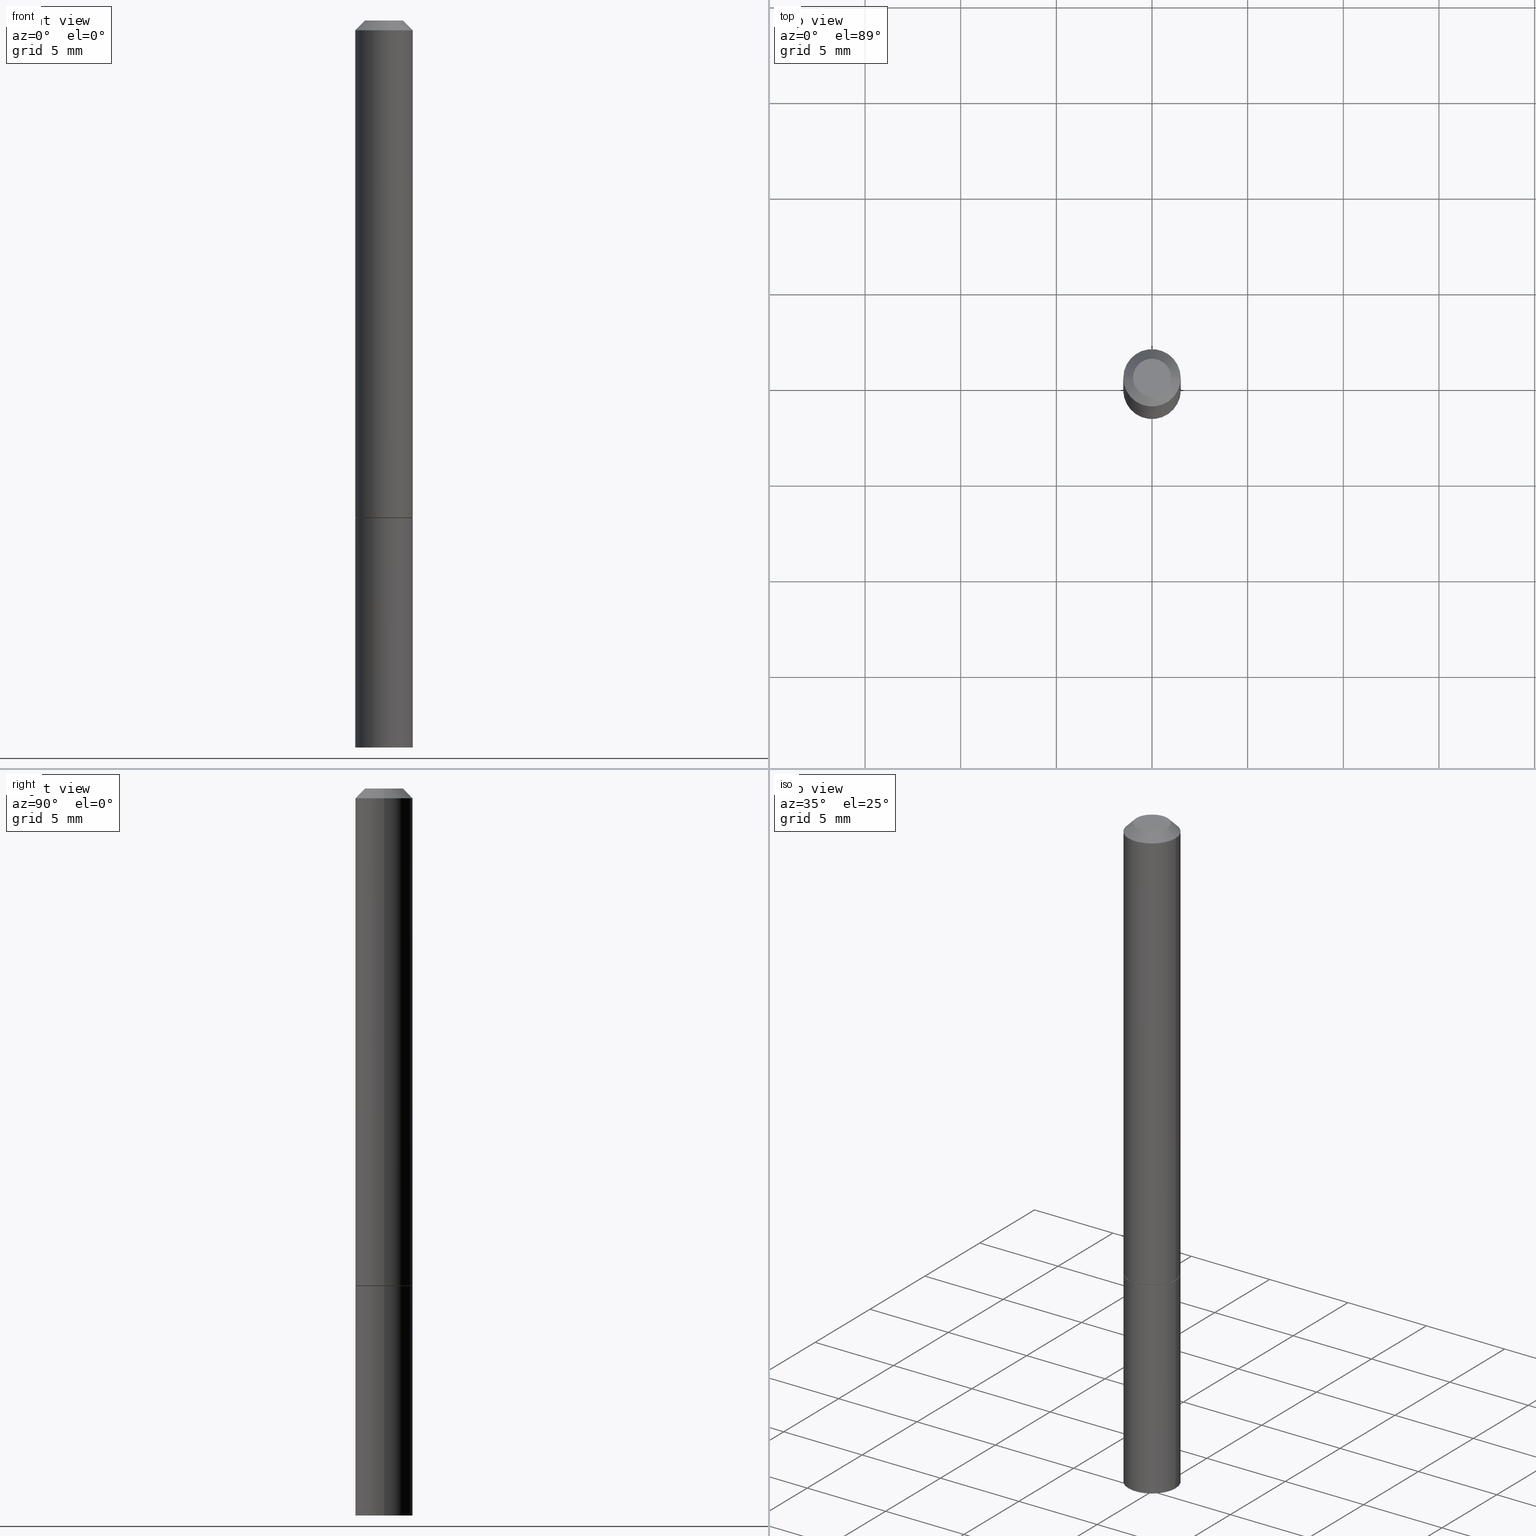
[diagram: canonical four-view strip — front | top / right | iso, engineering-drawing reading convention]
A machine part, canonical four-view strip (front | top / right | iso — engineering-drawing reading convention). The complete STEP part file that produces these views, byte-faithful:
ISO-10303-21;
HEADER;
FILE_DESCRIPTION (( 'STEP AP203' ),
    '1' );
FILE_NAME ('48547.STEP',
    '2024-02-28T12:10:07',
    ( '' ),
    ( '' ),
    'SwSTEP 2.0',
    'SolidWorks 2023',
    '' );
FILE_SCHEMA (( 'CONFIG_CONTROL_DESIGN' ));
ENDSEC;

DATA;
#1 = ORIENTED_EDGE ( 'NONE', *, *, #110, .T. ) ;
#2 = AXIS2_PLACEMENT_3D ( 'NONE', #223, #228, #162 ) ;
#3 = ORIENTED_EDGE ( 'NONE', *, *, #339, .F. ) ;
#4 = CIRCLE ( 'NONE', #213, 0.05805000000000001131 ) ;
#5 = CC_DESIGN_APPROVAL ( #293, ( #258 ) ) ;
#6 = ORIENTED_EDGE ( 'NONE', *, *, #261, .T. ) ;
#7 = EDGE_CURVE ( 'NONE', #59, #209, #348, .T. ) ;
#8 = PRODUCT_RELATED_PRODUCT_CATEGORY ( 'detail', '', ( #28 ) ) ;
#9 = ORIENTED_EDGE ( 'NONE', *, *, #236, .F. ) ;
#10 = ORGANIZATION ( 'UNSPECIFIED', 'UNSPECIFIED', '' ) ;
#11 = CARTESIAN_POINT ( 'NONE',  ( 2.500980948085538461E-29, -3.570737965234883817E-15, -1.022699999999999720 ) ) ;
#12 = AXIS2_PLACEMENT_3D ( 'NONE', #323, #349, #212 ) ;
#13 = CARTESIAN_POINT ( 'NONE',  ( 0.03904999999999982097, -3.714222401791240519E-16, -5.549066237130309406E-17 ) ) ;
#14 = DIRECTION ( 'NONE',  ( 1.000000000000000000, -6.982962677686270655E-15, 0.000000000000000000 ) ) ;
#15 = CARTESIAN_POINT ( 'NONE',  ( 1.357006838635785746E-45, -1.937446121494581442E-31, -5.549066237130534971E-17 ) ) ;
#16 = CARTESIAN_POINT ( 'NONE',  ( 2.503426416891723784E-29, -3.574229446573727613E-15, -1.023699999999999832 ) ) ;
#17 = CARTESIAN_POINT ( 'NONE',  ( 2.503426416891723784E-29, -3.574229446573727613E-15, -1.023699999999999832 ) ) ;
#18 = FACE_OUTER_BOUND ( 'NONE', #281, .T. ) ;
#19 = AXIS2_PLACEMENT_3D ( 'NONE', #214, #75, #101 ) ;
#20 = DIRECTION ( 'NONE',  ( -2.445468806185136597E-29, 3.491481338843145583E-15, 1.000000000000000000 ) ) ;
#21 = DIRECTION ( 'NONE',  ( -2.445468806185136597E-29, 3.491481338843145583E-15, 1.000000000000000000 ) ) ;
#22 = ORIENTED_EDGE ( 'NONE', *, *, #236, .T. ) ;
#23 = FACE_OUTER_BOUND ( 'NONE', #31, .T. ) ;
#24 = APPROVAL ( #365, 'UNSPECIFIED' ) ;
#25 = DIMENSIONAL_EXPONENTS ( 1.000000000000000000, 0.000000000000000000, 0.000000000000000000, 0.000000000000000000, 0.000000000000000000, 0.000000000000000000, 0.000000000000000000 ) ;
#26 = CONICAL_SURFACE ( 'NONE', #327, 0.05904999999999981097, 0.7853981633974476129 ) ;
#27 = CARTESIAN_POINT ( 'NONE',  ( 1.357006838635785746E-45, -1.937446121494581442E-31, -5.549066237130534971E-17 ) ) ;
#28 = PRODUCT ( '48547', '48547', '', ( #168 ) ) ;
#29 = CC_DESIGN_PERSON_AND_ORGANIZATION_ASSIGNMENT ( #314, #169, ( #227 ) ) ;
#30 = ORIENTED_EDGE ( 'NONE', *, *, #347, .F. ) ;
#31 = EDGE_LOOP ( 'NONE', ( #316, #112, #35, #111 ) ) ;
#32 = ORIENTED_EDGE ( 'NONE', *, *, #54, .T. ) ;
#33 = ORIENTED_EDGE ( 'NONE', *, *, #85, .T. ) ;
#34 = DATE_AND_TIME ( #201, #98 ) ;
#35 = ORIENTED_EDGE ( 'NONE', *, *, #274, .F. ) ;
#36 = CIRCLE ( 'NONE', #235, 0.03904999999999982097 ) ;
#37 = LOCAL_TIME ( 7, 10, 7.000000000000000000, #42 ) ;
#38 = PERSON_AND_ORGANIZATION ( #338, #10 ) ;
#39 = LINE ( 'NONE', #269, #84 ) ;
#40 = PLANE ( 'NONE',  #203 ) ;
#41 = LINE ( 'NONE', #152, #344 ) ;
#42 = COORDINATED_UNIVERSAL_TIME_OFFSET ( 5, 0, .BEHIND. ) ;
#43 = CIRCLE ( 'NONE', #302, 0.05905000000000001914 ) ;
#44 = CYLINDRICAL_SURFACE ( 'NONE', #355, 0.05905000000000001914 ) ;
#45 = CARTESIAN_POINT ( 'NONE',  ( 4.890937612370292426E-31, -6.982962677686317493E-17, -0.02000000000000007674 ) ) ;
#46 = CARTESIAN_POINT ( 'NONE',  ( 0.05904999999999981097, -4.749420335452707859E-16, -0.02000000000000007674 ) ) ;
#47 = DIRECTION ( 'NONE',  ( -2.445468806185136597E-29, 3.491481338843145583E-15, 1.000000000000000000 ) ) ;
#48 = FACE_OUTER_BOUND ( 'NONE', #106, .T. ) ;
#49 = CARTESIAN_POINT ( 'NONE',  ( 0.000000000000000000, 0.000000000000000000, 0.000000000000000000 ) ) ;
#50 = ADVANCED_FACE ( 'NONE', ( #211 ), #40, .F. ) ;
#51 = AXIS2_PLACEMENT_3D ( 'NONE', #96, #93, #290 ) ;
#52 = CC_DESIGN_PERSON_AND_ORGANIZATION_ASSIGNMENT ( #66, #86, ( #227 ) ) ;
#53 = ORIENTED_EDGE ( 'NONE', *, *, #206, .F. ) ;
#54 = EDGE_CURVE ( 'NONE', #345, #305, #165, .T. ) ;
#55 = CIRCLE ( 'NONE', #181, 0.05805000000000001131 ) ;
#56 = APPROVAL_DATE_TIME ( #297, #250 ) ;
#57 = CARTESIAN_POINT ( 'NONE',  ( -0.05905000000000001914, -3.979341853342139538E-15, -1.496099999999999985 ) ) ;
#58 = DIRECTION ( 'NONE',  ( 1.000000000000000000, 0.000000000000000000, 0.000000000000000000 ) ) ;
#59 = VERTEX_POINT ( 'NONE', #184 ) ;
#60 = DATE_TIME_ROLE ( 'creation_date' ) ;
#61 = EDGE_CURVE ( 'NONE', #170, #209, #324, .T. ) ;
#62 = ORIENTED_EDGE ( 'NONE', *, *, #189, .F. ) ;
#63 = ORIENTED_EDGE ( 'NONE', *, *, #68, .F. ) ;
#64 = AXIS2_PLACEMENT_3D ( 'NONE', #251, #187, #298 ) ;
#65 = ORIENTED_EDGE ( 'NONE', *, *, #206, .T. ) ;
#66 = PERSON_AND_ORGANIZATION ( #338, #10 ) ;
#67 = VERTEX_POINT ( 'NONE', #46 ) ;
#68 = EDGE_CURVE ( 'NONE', #305, #345, #257, .T. ) ;
#69 = ORIENTED_EDGE ( 'NONE', *, *, #116, .T. ) ;
#70 = CIRCLE ( 'NONE', #263, 0.05904999999999981097 ) ;
#71 = DATE_TIME_ROLE ( 'classification_date' ) ;
#72 = EDGE_LOOP ( 'NONE', ( #9, #6, #286, #230 ) ) ;
#73 = DIRECTION ( 'NONE',  ( 1.000000000000000000, -6.982962677686265922E-15, 0.000000000000000000 ) ) ;
#74 = LINE ( 'NONE', #188, #280 ) ;
#75 = DIRECTION ( 'NONE',  ( -2.445468806185136597E-29, 3.491481338843145583E-15, 1.000000000000000000 ) ) ;
#76 = DIRECTION ( 'NONE',  ( -2.445468806185136597E-29, 3.491481338843145583E-15, 1.000000000000000000 ) ) ;
#77 = DIRECTION ( 'NONE',  ( 1.000000000000000000, -6.982962677686270655E-15, 0.000000000000000000 ) ) ;
#78 = FACE_OUTER_BOUND ( 'NONE', #172, .T. ) ;
#79 = DIRECTION ( 'NONE',  ( -2.445468806185136597E-29, 3.491481338843145583E-15, 1.000000000000000000 ) ) ;
#80 = CIRCLE ( 'NONE', #268, 0.03904999999999982097 ) ;
#81 = ORIENTED_EDGE ( 'NONE', *, *, #153, .F. ) ;
#82 = VERTEX_POINT ( 'NONE', #180 ) ;
#83 = EDGE_LOOP ( 'NONE', ( #3, #200, #204, #254 ) ) ;
#84 = VECTOR ( 'NONE', #156, 39.37007874015748143 ) ;
#85 = EDGE_CURVE ( 'NONE', #170, #88, #80, .T. ) ;
#86 = PERSON_AND_ORGANIZATION_ROLE ( 'creator' ) ;
#87 = DATE_AND_TIME ( #315, #142 ) ;
#88 = VERTEX_POINT ( 'NONE', #13 ) ;
#89 = CARTESIAN_POINT ( 'NONE',  ( -0.05904999999999988036, 4.195754854663383097E-16, -2.904631170795515936E-30 ) ) ;
#90 = CARTESIAN_POINT ( 'NONE',  ( 4.890937612370292426E-31, -6.982962677686317493E-17, -0.02000000000000007674 ) ) ;
#91 = APPROVAL_DATE_TIME ( #34, #24 ) ;
#92 = DIRECTION ( 'NONE',  ( -2.445468806185136597E-29, 3.491481338843145583E-15, 1.000000000000000000 ) ) ;
#93 = DIRECTION ( 'NONE',  ( 2.438088387897960049E-29, -3.491481338843145188E-15, -1.000000000000000000 ) ) ;
#94 = EDGE_LOOP ( 'NONE', ( #33, #364 ) ) ;
#95 = LINE ( 'NONE', #295, #276 ) ;
#96 = CARTESIAN_POINT ( 'NONE',  ( 4.123439461174106654E-16, 0.05904999999999479415, -1.496100000000000207 ) ) ;
#97 = AXIS2_PLACEMENT_3D ( 'NONE', #299, #178, #267 ) ;
#98 = LOCAL_TIME ( 7, 10, 7.000000000000000000, #231 ) ;
#99 = CARTESIAN_POINT ( 'NONE',  ( -0.05805000000000001131, -3.161759388464989128E-15, -1.023699999999999832 ) ) ;
#100 = DIRECTION ( 'NONE',  ( -2.445468806185136877E-29, 3.491481338843145188E-15, 1.000000000000000000 ) ) ;
#101 = DIRECTION ( 'NONE',  ( 1.000000000000000000, -6.982962677686262766E-15, 0.000000000000000000 ) ) ;
#102 =( LENGTH_UNIT ( ) NAMED_UNIT ( * ) SI_UNIT ( $, .METRE. ) );
#103 = CARTESIAN_POINT ( 'NONE',  ( 0.05905000000000001914, -3.986573392691101744E-15, -1.023699999999999832 ) ) ;
#104 = AXIS2_PLACEMENT_3D ( 'NONE', #122, #241, #243 ) ;
#105 = PERSON_AND_ORGANIZATION ( #338, #10 ) ;
#106 = EDGE_LOOP ( 'NONE', ( #256, #65, #140, #237 ) ) ;
#107 = FACE_OUTER_BOUND ( 'NONE', #94, .T. ) ;
#108 = APPLICATION_PROTOCOL_DEFINITION ( 'international standard', 'config_control_design', 1994, #265 ) ;
#109 = CC_DESIGN_APPROVAL ( #24, ( #227 ) ) ;
#110 = EDGE_CURVE ( 'NONE', #311, #67, #95, .T. ) ;
#111 = ORIENTED_EDGE ( 'NONE', *, *, #110, .F. ) ;
#112 = ORIENTED_EDGE ( 'NONE', *, *, #7, .T. ) ;
#113 = ORIENTED_EDGE ( 'NONE', *, *, #54, .F. ) ;
#114 = ADVANCED_FACE ( 'NONE', ( #215 ), #44, .T. ) ;
#115 =( GEOMETRIC_REPRESENTATION_CONTEXT ( 3 ) GLOBAL_UNCERTAINTY_ASSIGNED_CONTEXT ( ( #151 ) ) GLOBAL_UNIT_ASSIGNED_CONTEXT ( ( #337, #163, #135 ) ) REPRESENTATION_CONTEXT ( 'NONE', 'WORKASPACE' ) );
#116 = EDGE_CURVE ( 'NONE', #343, #146, #55, .T. ) ;
#117 = ORIENTED_EDGE ( 'NONE', *, *, #61, .T. ) ;
#118 = ORIENTED_EDGE ( 'NONE', *, *, #85, .F. ) ;
#119 = FACE_OUTER_BOUND ( 'NONE', #72, .T. ) ;
#120 = CC_DESIGN_PERSON_AND_ORGANIZATION_ASSIGNMENT ( #262, #205, ( #258 ) ) ;
#121 = CARTESIAN_POINT ( 'NONE',  ( 2.503426416891723784E-29, -3.574229446573727613E-15, -1.023699999999999832 ) ) ;
#122 = CARTESIAN_POINT ( 'NONE',  ( 3.658665880933582389E-29, -5.223605231043229660E-15, -1.496099999999999985 ) ) ;
#123 = ADVANCED_FACE ( 'NONE', ( #78 ), #240, .F. ) ;
#124 = DIRECTION ( 'NONE',  ( 1.000000000000000000, -6.982962677686265922E-15, 4.876176775795935793E-29 ) ) ;
#125 = CC_DESIGN_SECURITY_CLASSIFICATION ( #258, ( #227 ) ) ;
#126 = DIRECTION ( 'NONE',  ( -2.445468806185136597E-29, 3.491481338843145583E-15, 1.000000000000000000 ) ) ;
#127 = AXIS2_PLACEMENT_3D ( 'NONE', #11, #126, #14 ) ;
#128 = DIRECTION ( 'NONE',  ( 1.000000000000000000, -6.982962677686270655E-15, 0.000000000000000000 ) ) ;
#129 = CARTESIAN_POINT ( 'NONE',  ( 3.658665880933582389E-29, -5.223605231043229660E-15, -1.496099999999999985 ) ) ;
#130 = ADVANCED_FACE ( 'NONE', ( #48 ), #157, .T. ) ;
#131 = LINE ( 'NONE', #304, #224 ) ;
#132 = APPLICATION_PROTOCOL_DEFINITION ( 'international standard', 'config_control_design', 1994, #342 ) ;
#133 = AXIS2_PLACEMENT_3D ( 'NONE', #16, #79, #77 ) ;
#134 = PLANE ( 'NONE',  #346 ) ;
#135 =( NAMED_UNIT ( * ) SI_UNIT ( $, .STERADIAN. ) SOLID_ANGLE_UNIT ( ) );
#136 = DATE_AND_TIME ( #226, #158 ) ;
#137 = ADVANCED_FACE ( 'NONE', ( #334 ), #363, .T. ) ;
#138 = COORDINATED_UNIVERSAL_TIME_OFFSET ( 5, 0, .BEHIND. ) ;
#139 = CYLINDRICAL_SURFACE ( 'NONE', #285, 0.05904999999999988036 ) ;
#140 = ORIENTED_EDGE ( 'NONE', *, *, #166, .F. ) ;
#141 = VECTOR ( 'NONE', #149, 39.37007874015748143 ) ;
#142 = LOCAL_TIME ( 7, 10, 7.000000000000000000, #207 ) ;
#143 = ADVANCED_FACE ( 'NONE', ( #147 ), #245, .T. ) ;
#144 = EDGE_LOOP ( 'NONE', ( #53, #32, #259, #62 ) ) ;
#145 = VECTOR ( 'NONE', #296, 39.37007874015748854 ) ;
#146 = VERTEX_POINT ( 'NONE', #329 ) ;
#147 = FACE_OUTER_BOUND ( 'NONE', #289, .T. ) ;
#148 = CC_DESIGN_DATE_AND_TIME_ASSIGNMENT ( #87, #71, ( #258 ) ) ;
#149 = DIRECTION ( 'NONE',  ( -2.445468806185136877E-29, 3.491481338843145188E-15, 1.000000000000000000 ) ) ;
#150 = AXIS2_PLACEMENT_3D ( 'NONE', #275, #20, #333 ) ;
#151 = UNCERTAINTY_MEASURE_WITH_UNIT (LENGTH_MEASURE( 1.000000000000000082E-05 ), #337, 'distance_accuracy_value', 'NONE');
#152 = CARTESIAN_POINT ( 'NONE',  ( 0.05805000000000001131, -3.979590430013415730E-15, -1.023699999999999832 ) ) ;
#153 = EDGE_CURVE ( 'NONE', #209, #67, #173, .T. ) ;
#154 = DIRECTION ( 'NONE',  ( 2.445468806185136597E-29, -3.491481338843145583E-15, -1.000000000000000000 ) ) ;
#155 = DIRECTION ( 'NONE',  ( 1.000000000000000000, -6.982962677686265922E-15, 4.873707401586885104E-29 ) ) ;
#156 = DIRECTION ( 'NONE',  ( -2.445468806185136877E-29, 3.491481338843145188E-15, 1.000000000000000000 ) ) ;
#157 = CYLINDRICAL_SURFACE ( 'NONE', #150, 0.05905000000000001914 ) ;
#158 = LOCAL_TIME ( 7, 10, 7.000000000000000000, #138 ) ;
#159 = DIRECTION ( 'NONE',  ( -2.445468806185136597E-29, 3.491481338843145583E-15, 1.000000000000000000 ) ) ;
#160 = CONICAL_SURFACE ( 'NONE', #2, 0.05805000000000001131, 0.7853981633973801113 ) ;
#161 = EDGE_CURVE ( 'NONE', #305, #291, #74, .T. ) ;
#162 = DIRECTION ( 'NONE',  ( 1.000000000000000000, -6.982962677686270655E-15, 0.000000000000000000 ) ) ;
#163 =( NAMED_UNIT ( * ) PLANE_ANGLE_UNIT ( ) SI_UNIT ( $, .RADIAN. ) );
#164 = CIRCLE ( 'NONE', #127, 0.05904999999999994975 ) ;
#165 = CIRCLE ( 'NONE', #104, 0.05905000000000001914 ) ;
#166 = EDGE_CURVE ( 'NONE', #291, #82, #288, .T. ) ;
#167 = DIRECTION ( 'NONE',  ( -1.000000000000000000, 6.982962677686265922E-15, -4.876176775795935793E-29 ) ) ;
#168 = MECHANICAL_CONTEXT ( 'NONE', #265, 'mechanical' ) ;
#169 = PERSON_AND_ORGANIZATION_ROLE ( 'design_supplier' ) ;
#170 = VERTEX_POINT ( 'NONE', #182 ) ;
#171 = APPROVAL_PERSON_ORGANIZATION ( #253, #24, #255 ) ;
#172 = EDGE_LOOP ( 'NONE', ( #279, #233 ) ) ;
#173 = CIRCLE ( 'NONE', #12, 0.05904999999999981097 ) ;
#174 = ADVANCED_FACE ( 'NONE', ( #292 ), #26, .T. ) ;
#175 = SECURITY_CLASSIFICATION_LEVEL ( 'unclassified' ) ;
#176 = DIRECTION ( 'NONE',  ( 1.000000000000000000, -6.982962677686262766E-15, 0.000000000000000000 ) ) ;
#177 = CC_DESIGN_DATE_AND_TIME_ASSIGNMENT ( #136, #60, ( #194 ) ) ;
#178 = DIRECTION ( 'NONE',  ( 2.445468806185136597E-29, -3.491481338843145583E-15, -1.000000000000000000 ) ) ;
#179 = ADVANCED_FACE ( 'NONE', ( #185 ), #208, .T. ) ;
#180 = CARTESIAN_POINT ( 'NONE',  ( -0.05905000000000001914, -3.979341853342139538E-15, -1.023699999999999832 ) ) ;
#181 = AXIS2_PLACEMENT_3D ( 'NONE', #351, #76, #330 ) ;
#182 = CARTESIAN_POINT ( 'NONE',  ( -0.03904999999999982097, 3.075995059520783951E-16, -5.549066237130737733E-17 ) ) ;
#183 = COORDINATED_UNIVERSAL_TIME_OFFSET ( 5, 0, .BEHIND. ) ;
#184 = CARTESIAN_POINT ( 'NONE',  ( -0.05904999999999994975, -1.400708310539532881E-15, -1.022699999999999720 ) ) ;
#185 = FACE_OUTER_BOUND ( 'NONE', #210, .T. ) ;
#186 = CALENDAR_DATE ( 2024, 28, 2 ) ;
#187 = DIRECTION ( 'NONE',  ( 2.438088387897960049E-29, -3.491481338843145188E-15, -1.000000000000000000 ) ) ;
#188 = CARTESIAN_POINT ( 'NONE',  ( 0.05905000000000001914, -4.123439461173741806E-16, 2.879382386107500921E-30 ) ) ;
#189 = EDGE_CURVE ( 'NONE', #82, #291, #43, .T. ) ;
#190 = MANIFOLD_SOLID_BREP ( 'Body-Move/Copy2[1]', #340 ) ;
#191 = AXIS2_PLACEMENT_3D ( 'NONE', #309, #362, #58 ) ;
#192 = CARTESIAN_POINT ( 'NONE',  ( 0.05904999999999994975, -3.983081911352257948E-15, -1.022699999999999720 ) ) ;
#193 = PERSON_AND_ORGANIZATION ( #338, #10 ) ;
#194 = PRODUCT_DEFINITION ( 'UNKNOWN', '', #227, #264 ) ;
#195 = PERSON_AND_ORGANIZATION_ROLE ( 'creator' ) ;
#196 = DIRECTION ( 'NONE',  ( 0.7071067811865469066, -7.319954787623252890E-15, -0.7071067811865479058 ) ) ;
#197 = APPROVAL_PERSON_ORGANIZATION ( #193, #250, #356 ) ;
#198 = CC_DESIGN_PERSON_AND_ORGANIZATION_ASSIGNMENT ( #252, #247, ( #28 ) ) ;
#199 = CARTESIAN_POINT ( 'NONE',  ( 2.726846925636474363E-16, 0.03904999999999982097, -1.640876774674768860E-16 ) ) ;
#200 = ORIENTED_EDGE ( 'NONE', *, *, #347, .T. ) ;
#201 = CALENDAR_DATE ( 2024, 28, 2 ) ;
#202 = EDGE_CURVE ( 'NONE', #343, #311, #41, .T. ) ;
#203 = AXIS2_PLACEMENT_3D ( 'NONE', #234, #306, #124 ) ;
#204 = ORIENTED_EDGE ( 'NONE', *, *, #274, .T. ) ;
#205 = PERSON_AND_ORGANIZATION_ROLE ( 'classification_officer' ) ;
#206 = EDGE_CURVE ( 'NONE', #345, #82, #39, .T. ) ;
#207 = COORDINATED_UNIVERSAL_TIME_OFFSET ( 5, 0, .BEHIND. ) ;
#208 = CONICAL_SURFACE ( 'NONE', #97, 0.05904999999999981097, 0.7853981633974476129 ) ;
#209 = VERTEX_POINT ( 'NONE', #273 ) ;
#210 = EDGE_LOOP ( 'NONE', ( #30, #118, #117, #353 ) ) ;
#211 = FACE_OUTER_BOUND ( 'NONE', #321, .T. ) ;
#212 = DIRECTION ( 'NONE',  ( 1.000000000000000000, -6.982962677686265922E-15, 0.000000000000000000 ) ) ;
#213 = AXIS2_PLACEMENT_3D ( 'NONE', #121, #21, #128 ) ;
#214 = CARTESIAN_POINT ( 'NONE',  ( 2.503426416891723784E-29, -3.574229446573727613E-15, -1.023699999999999832 ) ) ;
#215 = FACE_OUTER_BOUND ( 'NONE', #144, .T. ) ;
#216 = DIRECTION ( 'NONE',  ( -0.7071067811864992780, 7.493145998870180611E-15, 0.7071067811865957564 ) ) ;
#217 = APPROVAL_ROLE ( '' ) ;
#218 = ADVANCED_FACE ( 'NONE', ( #18 ), #239, .T. ) ;
#219 = DIRECTION ( 'NONE',  ( 1.000000000000000000, -6.982962677686266711E-15, 4.876176775795935232E-29 ) ) ;
#220 = LENGTH_MEASURE_WITH_UNIT ( LENGTH_MEASURE( 0.02539999999999999897 ), #102 );
#221 = DIRECTION ( 'NONE',  ( -2.445468806185136597E-29, 3.491481338843145583E-15, 1.000000000000000000 ) ) ;
#222 = CC_DESIGN_APPROVAL ( #250, ( #194 ) ) ;
#223 = CARTESIAN_POINT ( 'NONE',  ( 2.503426416891723784E-29, -3.574229446573727613E-15, -1.023699999999999832 ) ) ;
#224 = VECTOR ( 'NONE', #196, 39.37007874015748854 ) ;
#225 = EDGE_CURVE ( 'NONE', #59, #311, #164, .T. ) ;
#226 = CALENDAR_DATE ( 2024, 28, 2 ) ;
#227 = PRODUCT_DEFINITION_FORMATION_WITH_SPECIFIED_SOURCE ( 'ANY', '', #28, .NOT_KNOWN. ) ;
#228 = DIRECTION ( 'NONE',  ( -2.445468806185136597E-29, 3.491481338843145583E-15, 1.000000000000000000 ) ) ;
#229 = AXIS2_PLACEMENT_3D ( 'NONE', #331, #277, #361 ) ;
#230 = ORIENTED_EDGE ( 'NONE', *, *, #225, .F. ) ;
#231 = COORDINATED_UNIVERSAL_TIME_OFFSET ( 5, 0, .BEHIND. ) ;
#232 = DIRECTION ( 'NONE',  ( 1.000000000000000000, -6.982962677686266711E-15, 4.876176775795935232E-29 ) ) ;
#233 = ORIENTED_EDGE ( 'NONE', *, *, #189, .T. ) ;
#234 = CARTESIAN_POINT ( 'NONE',  ( 2.503426416891723784E-29, -3.574229446573727613E-15, -1.023699999999999832 ) ) ;
#235 = AXIS2_PLACEMENT_3D ( 'NONE', #27, #341, #336 ) ;
#236 = EDGE_CURVE ( 'NONE', #146, #59, #358, .T. ) ;
#237 = ORIENTED_EDGE ( 'NONE', *, *, #161, .F. ) ;
#238 = APPROVAL_STATUS ( 'not_yet_approved' ) ;
#239 = CYLINDRICAL_SURFACE ( 'NONE', #320, 0.05904999999999988036 ) ;
#240 = PLANE ( 'NONE',  #64 ) ;
#241 = DIRECTION ( 'NONE',  ( -2.445468806185136597E-29, 3.491481338843145583E-15, 1.000000000000000000 ) ) ;
#242 = DIRECTION ( 'NONE',  ( 0.7071067811864992780, -2.468850131081751401E-15, 0.7071067811865957564 ) ) ;
#243 = DIRECTION ( 'NONE',  ( 1.000000000000000000, -6.982962677686270655E-15, 0.000000000000000000 ) ) ;
#244 = AXIS2_PLACEMENT_3D ( 'NONE', #129, #221, #359 ) ;
#245 = PLANE ( 'NONE',  #51 ) ;
#246 = EDGE_CURVE ( 'NONE', #311, #59, #335, .T. ) ;
#247 = PERSON_AND_ORGANIZATION_ROLE ( 'design_owner' ) ;
#248 = CARTESIAN_POINT ( 'NONE',  ( -0.05904999999999981097, 3.425143193405095019E-16, -0.02000000000000007674 ) ) ;
#249 = DIRECTION ( 'NONE',  ( -2.445468806185136597E-29, 3.491481338843145583E-15, 1.000000000000000000 ) ) ;
#250 = APPROVAL ( #354, 'UNSPECIFIED' ) ;
#251 = CARTESIAN_POINT ( 'NONE',  ( 4.123439461173991776E-16, 0.05904999999999643867, -1.023700000000000054 ) ) ;
#252 = PERSON_AND_ORGANIZATION ( #338, #10 ) ;
#253 = PERSON_AND_ORGANIZATION ( #338, #10 ) ;
#254 = ORIENTED_EDGE ( 'NONE', *, *, #61, .F. ) ;
#255 = APPROVAL_ROLE ( '' ) ;
#256 = ORIENTED_EDGE ( 'NONE', *, *, #68, .T. ) ;
#257 = CIRCLE ( 'NONE', #244, 0.05905000000000001914 ) ;
#258 = SECURITY_CLASSIFICATION ( '', '', #175 ) ;
#259 = ORIENTED_EDGE ( 'NONE', *, *, #161, .T. ) ;
#260 = ADVANCED_BREP_SHAPE_REPRESENTATION ( '48547', ( #190, #313, #191 ), #115 ) ;
#261 = EDGE_CURVE ( 'NONE', #146, #343, #4, .T. ) ;
#262 = PERSON_AND_ORGANIZATION ( #338, #10 ) ;
#263 = AXIS2_PLACEMENT_3D ( 'NONE', #90, #249, #73 ) ;
#264 = DESIGN_CONTEXT ( 'detailed design', #342, 'design' ) ;
#265 = APPLICATION_CONTEXT ( 'configuration controlled 3d designs of mechanical parts and assemblies' ) ;
#266 = ORIENTED_EDGE ( 'NONE', *, *, #246, .F. ) ;
#267 = DIRECTION ( 'NONE',  ( -1.000000000000000000, 6.982962677686265922E-15, 0.000000000000000000 ) ) ;
#268 = AXIS2_PLACEMENT_3D ( 'NONE', #15, #357, #155 ) ;
#269 = CARTESIAN_POINT ( 'NONE',  ( -0.05905000000000001914, 4.195754854663392958E-16, -2.904631170795522943E-30 ) ) ;
#270 = ORIENTED_EDGE ( 'NONE', *, *, #202, .F. ) ;
#271 = CARTESIAN_POINT ( 'NONE',  ( 0.000000000000000000, 0.000000000000000000, 0.000000000000000000 ) ) ;
#272 = DIRECTION ( 'NONE',  ( -1.000000000000000000, 6.982962677686265922E-15, 0.000000000000000000 ) ) ;
#273 = CARTESIAN_POINT ( 'NONE',  ( -0.05904999999999981097, 3.425143193405095019E-16, -0.02000000000000007674 ) ) ;
#274 = EDGE_CURVE ( 'NONE', #67, #209, #70, .T. ) ;
#275 = CARTESIAN_POINT ( 'NONE',  ( 0.000000000000000000, 0.000000000000000000, 0.000000000000000000 ) ) ;
#276 = VECTOR ( 'NONE', #100, 39.37007874015748143 ) ;
#277 = DIRECTION ( 'NONE',  ( -2.445468806185136597E-29, 3.491481338843145583E-15, 1.000000000000000000 ) ) ;
#278 = ORIENTED_EDGE ( 'NONE', *, *, #7, .F. ) ;
#279 = ORIENTED_EDGE ( 'NONE', *, *, #166, .T. ) ;
#280 = VECTOR ( 'NONE', #325, 39.37007874015748143 ) ;
#281 = EDGE_LOOP ( 'NONE', ( #278, #301, #1, #81 ) ) ;
#282 = ORIENTED_EDGE ( 'NONE', *, *, #116, .F. ) ;
#283 = ADVANCED_FACE ( 'NONE', ( #119 ), #160, .T. ) ;
#284 = EDGE_LOOP ( 'NONE', ( #69, #22, #266, #270 ) ) ;
#285 = AXIS2_PLACEMENT_3D ( 'NONE', #287, #317, #232 ) ;
#286 = ORIENTED_EDGE ( 'NONE', *, *, #202, .T. ) ;
#287 = CARTESIAN_POINT ( 'NONE',  ( 0.000000000000000000, 0.000000000000000000, 0.000000000000000000 ) ) ;
#288 = CIRCLE ( 'NONE', #19, 0.05905000000000001914 ) ;
#289 = EDGE_LOOP ( 'NONE', ( #63, #113 ) ) ;
#290 = DIRECTION ( 'NONE',  ( -1.000000000000000000, 6.982962677686265922E-15, -4.876176775795935793E-29 ) ) ;
#291 = VERTEX_POINT ( 'NONE', #103 ) ;
#292 = FACE_OUTER_BOUND ( 'NONE', #83, .T. ) ;
#293 = APPROVAL ( #238, 'UNSPECIFIED' ) ;
#294 = CLOSED_SHELL ( 'NONE', ( #137, #360, #174, #179, #218, #283, #50, #352 ) ) ;
#295 = CARTESIAN_POINT ( 'NONE',  ( 0.05904999999999988036, -4.123439461173731945E-16, 2.879382386107493914E-30 ) ) ;
#296 = DIRECTION ( 'NONE',  ( -0.7071067811865469066, 2.468850131082251144E-15, -0.7071067811865479058 ) ) ;
#297 = DATE_AND_TIME ( #186, #318 ) ;
#298 = DIRECTION ( 'NONE',  ( -1.000000000000000000, 6.982962677686265922E-15, -4.876176775795935793E-29 ) ) ;
#299 = CARTESIAN_POINT ( 'NONE',  ( 4.890937612370292426E-31, -6.982962677686317493E-17, -0.02000000000000007674 ) ) ;
#300 = APPROVAL_DATE_TIME ( #332, #293 ) ;
#301 = ORIENTED_EDGE ( 'NONE', *, *, #225, .T. ) ;
#302 = AXIS2_PLACEMENT_3D ( 'NONE', #17, #47, #176 ) ;
#303 = APPROVAL_PERSON_ORGANIZATION ( #38, #293, #217 ) ;
#304 = CARTESIAN_POINT ( 'NONE',  ( 0.05904999999999981097, -4.749420335452707859E-16, -0.02000000000000007674 ) ) ;
#305 = VERTEX_POINT ( 'NONE', #366 ) ;
#306 = DIRECTION ( 'NONE',  ( -2.438088387897960049E-29, 3.491481338843145188E-15, 1.000000000000000000 ) ) ;
#307 = CARTESIAN_POINT ( 'NONE',  ( 0.05805000000000001131, -3.979590430013415730E-15, -1.023699999999999832 ) ) ;
#308 = VECTOR ( 'NONE', #216, 39.37007874015748143 ) ;
#309 = CARTESIAN_POINT ( 'NONE',  ( 0.000000000000000000, 0.000000000000000000, 0.000000000000000000 ) ) ;
#310 = DIRECTION ( 'NONE',  ( 2.438088387897960049E-29, -3.491481338843145188E-15, -1.000000000000000000 ) ) ;
#311 = VERTEX_POINT ( 'NONE', #192 ) ;
#312 = ORIENTED_EDGE ( 'NONE', *, *, #261, .F. ) ;
#313 = MANIFOLD_SOLID_BREP ( 'Body-Move/Copy2[2]', #294 ) ;
#314 = PERSON_AND_ORGANIZATION ( #338, #10 ) ;
#315 = CALENDAR_DATE ( 2024, 28, 2 ) ;
#316 = ORIENTED_EDGE ( 'NONE', *, *, #246, .T. ) ;
#317 = DIRECTION ( 'NONE',  ( -2.445468806185136597E-29, 3.491481338843145583E-15, 1.000000000000000000 ) ) ;
#318 = LOCAL_TIME ( 7, 10, 7.000000000000000000, #183 ) ;
#319 = SHAPE_DEFINITION_REPRESENTATION ( #326, #260 ) ;
#320 = AXIS2_PLACEMENT_3D ( 'NONE', #49, #159, #219 ) ;
#321 = EDGE_LOOP ( 'NONE', ( #282, #312 ) ) ;
#322 = CC_DESIGN_PERSON_AND_ORGANIZATION_ASSIGNMENT ( #105, #195, ( #194 ) ) ;
#323 = CARTESIAN_POINT ( 'NONE',  ( 4.890937612370292426E-31, -6.982962677686317493E-17, -0.02000000000000007674 ) ) ;
#324 = LINE ( 'NONE', #248, #145 ) ;
#325 = DIRECTION ( 'NONE',  ( -2.445468806185136877E-29, 3.491481338843145188E-15, 1.000000000000000000 ) ) ;
#326 = PRODUCT_DEFINITION_SHAPE ( 'NONE', 'NONE',  #194 ) ;
#327 = AXIS2_PLACEMENT_3D ( 'NONE', #45, #154, #272 ) ;
#328 = DIRECTION ( 'NONE',  ( 1.000000000000000000, -6.982962677686266711E-15, 4.876176775795935793E-29 ) ) ;
#329 = CARTESIAN_POINT ( 'NONE',  ( -0.05805000000000001131, -3.156460934116767120E-15, -1.023699999999999832 ) ) ;
#330 = DIRECTION ( 'NONE',  ( 1.000000000000000000, -6.982962677686270655E-15, 0.000000000000000000 ) ) ;
#331 = CARTESIAN_POINT ( 'NONE',  ( 2.500980948085538461E-29, -3.570737965234883817E-15, -1.022699999999999720 ) ) ;
#332 = DATE_AND_TIME ( #350, #37 ) ;
#333 = DIRECTION ( 'NONE',  ( 1.000000000000000000, -6.982962677686266711E-15, 4.876176775795935793E-29 ) ) ;
#334 = FACE_OUTER_BOUND ( 'NONE', #284, .T. ) ;
#335 = CIRCLE ( 'NONE', #229, 0.05904999999999994975 ) ;
#336 = DIRECTION ( 'NONE',  ( 1.000000000000000000, -6.982962677686265922E-15, 4.873707401586885104E-29 ) ) ;
#337 =( CONVERSION_BASED_UNIT ( 'INCH', #220 ) LENGTH_UNIT ( ) NAMED_UNIT ( #25 ) );
#338 = PERSON ( 'UNSPECIFIED', 'UNSPECIFIED', 'UNSPECIFIED', ('UNSPECIFIED'), ('UNSPECIFIED'), ('UNSPECIFIED') ) ;
#339 = EDGE_CURVE ( 'NONE', #88, #170, #36, .T. ) ;
#340 = CLOSED_SHELL ( 'NONE', ( #130, #143, #123, #114 ) ) ;
#341 = DIRECTION ( 'NONE',  ( -2.445468806185136597E-29, 3.491481338843145583E-15, 1.000000000000000000 ) ) ;
#342 = APPLICATION_CONTEXT ( 'configuration controlled 3d designs of mechanical parts and assemblies' ) ;
#343 = VERTEX_POINT ( 'NONE', #307 ) ;
#344 = VECTOR ( 'NONE', #242, 39.37007874015748143 ) ;
#345 = VERTEX_POINT ( 'NONE', #57 ) ;
#346 = AXIS2_PLACEMENT_3D ( 'NONE', #199, #310, #167 ) ;
#347 = EDGE_CURVE ( 'NONE', #88, #67, #131, .T. ) ;
#348 = LINE ( 'NONE', #89, #141 ) ;
#349 = DIRECTION ( 'NONE',  ( -2.445468806185136597E-29, 3.491481338843145583E-15, 1.000000000000000000 ) ) ;
#350 = CALENDAR_DATE ( 2024, 28, 2 ) ;
#351 = CARTESIAN_POINT ( 'NONE',  ( 2.503426416891723784E-29, -3.574229446573727613E-15, -1.023699999999999832 ) ) ;
#352 = ADVANCED_FACE ( 'NONE', ( #107 ), #134, .F. ) ;
#353 = ORIENTED_EDGE ( 'NONE', *, *, #153, .T. ) ;
#354 = APPROVAL_STATUS ( 'not_yet_approved' ) ;
#355 = AXIS2_PLACEMENT_3D ( 'NONE', #271, #92, #328 ) ;
#356 = APPROVAL_ROLE ( '' ) ;
#357 = DIRECTION ( 'NONE',  ( -2.445468806185136597E-29, 3.491481338843145583E-15, 1.000000000000000000 ) ) ;
#358 = LINE ( 'NONE', #99, #308 ) ;
#359 = DIRECTION ( 'NONE',  ( 1.000000000000000000, -6.982962677686270655E-15, 0.000000000000000000 ) ) ;
#360 = ADVANCED_FACE ( 'NONE', ( #23 ), #139, .T. ) ;
#361 = DIRECTION ( 'NONE',  ( 1.000000000000000000, -6.982962677686270655E-15, 0.000000000000000000 ) ) ;
#362 = DIRECTION ( 'NONE',  ( 0.000000000000000000, 0.000000000000000000, 1.000000000000000000 ) ) ;
#363 = CONICAL_SURFACE ( 'NONE', #133, 0.05805000000000001131, 0.7853981633973801113 ) ;
#364 = ORIENTED_EDGE ( 'NONE', *, *, #339, .T. ) ;
#365 = APPROVAL_STATUS ( 'not_yet_approved' ) ;
#366 = CARTESIAN_POINT ( 'NONE',  ( 0.05905000000000001914, -5.635949177160603791E-15, -1.496099999999999985 ) ) ;
ENDSEC;
END-ISO-10303-21;
